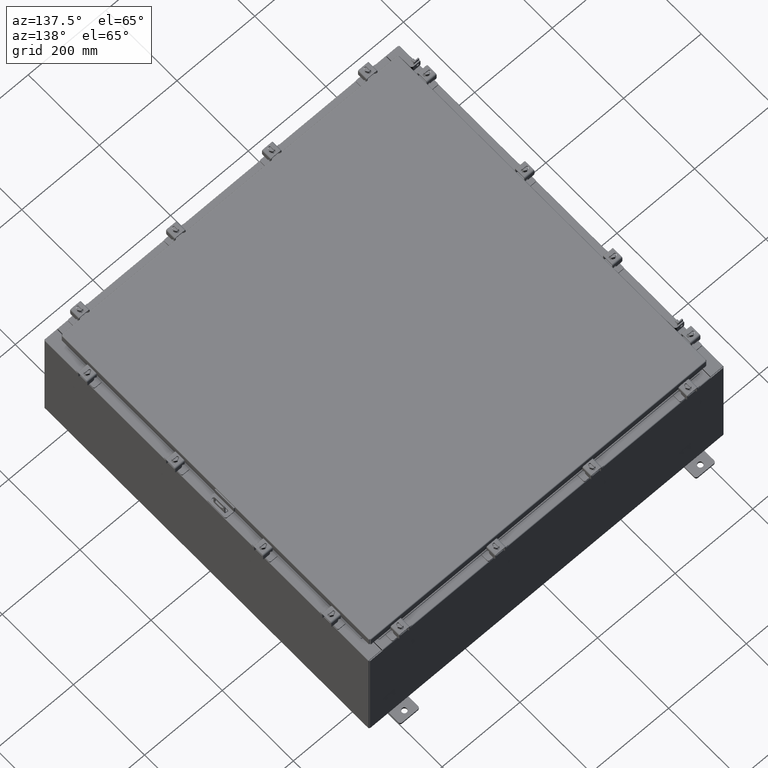
[diagram: clean part render]
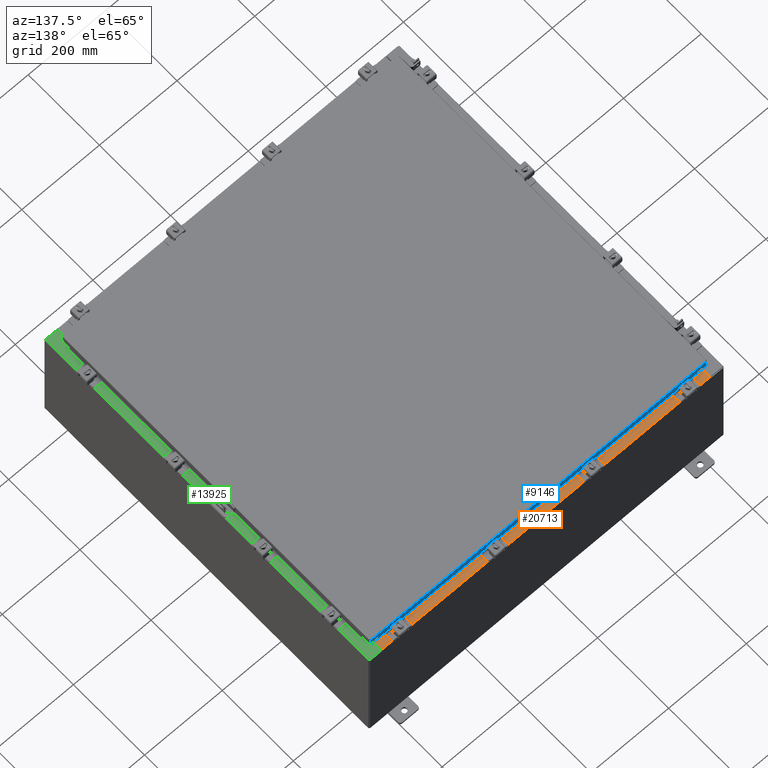
[diagram: same view with three faces highlighted in distinct colors, each labeled with its STEP entity id]
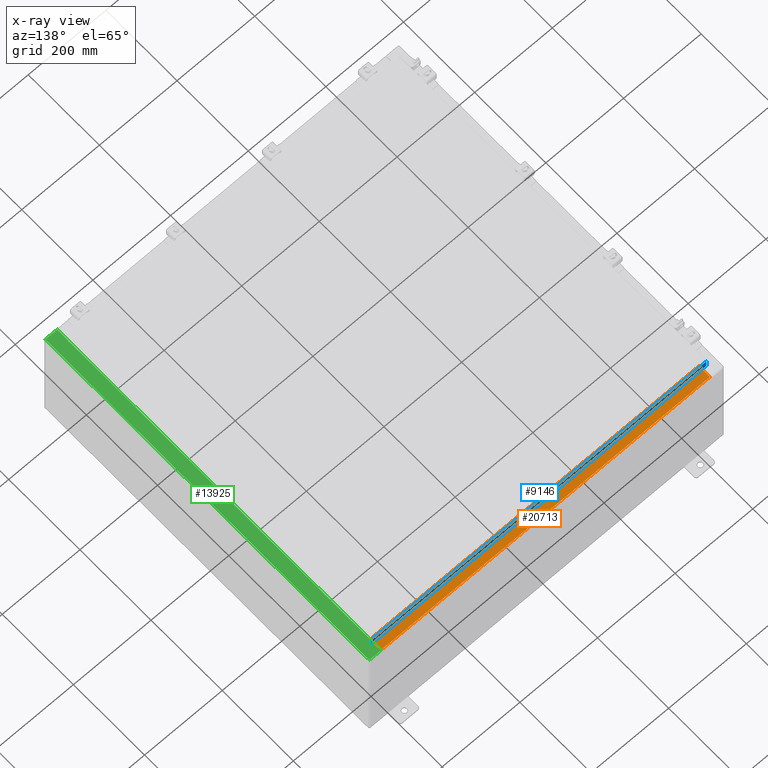
[diagram: x-ray of the same camera — body ghosted, the three highlighted faces saturated]
A machine part, auxiliary view with three faces highlighted in distinct colors.
The next image is the same camera in x-ray (body ghosted, the three faces saturated) — at least one of them is partly hidden behind the body in this view.
Their STEP definitions:

[orange] entity #20713 — the highlighted planar face has unit normal (0, 0, 1).
#75 = EDGE_CURVE ( 'NONE', #6809, #26015, #13913, .T. ) ;
#3413 = CARTESIAN_POINT ( 'NONE',  ( 16.63720000000000400, -1.300299999999999800, 6.000000000000003600 ) ) ;
#3482 = VERTEX_POINT ( 'NONE', #27142 ) ;
#3706 = CARTESIAN_POINT ( 'NONE',  ( -5.156971724347648400E-018, -0.08769999999999972300, 5.999999999999999100 ) ) ;
#4529 = FACE_OUTER_BOUND ( 'NONE', #23442, .T. ) ;
#4786 = DIRECTION ( 'NONE',  ( -1.000000000000000000, 0.0000000000000000000, 0.0000000000000000000 ) ) ;
#4830 = CARTESIAN_POINT ( 'NONE',  ( -16.63719999999999600, -1.287299999999998600, 6.000000000000002700 ) ) ;
#5533 = DIRECTION ( 'NONE',  ( -0.0000000000000000000, -1.000000000000000000, 3.566381192773190000E-015 ) ) ;
#6809 = VERTEX_POINT ( 'NONE', #9914 ) ;
#7906 = EDGE_CURVE ( 'NONE', #21791, #26015, #25674, .T. ) ;
#9425 = EDGE_CURVE ( 'NONE', #6809, #3482, #17048, .T. ) ;
#9727 = CARTESIAN_POINT ( 'NONE',  ( -2.276882898771239300E-018, 1.610972251716581800E-014, 5.999999999999999100 ) ) ;
#9914 = CARTESIAN_POINT ( 'NONE',  ( 16.63720000000000400, -0.08769999999999948700, 5.999999999999999100 ) ) ;
#11105 = CARTESIAN_POINT ( 'NONE',  ( 16.63720000000000400, -1.287299999999999400, 6.000000000000001800 ) ) ;
#11203 = VECTOR ( 'NONE', #4786, 39.37007874015748100 ) ;
#11459 = VECTOR ( 'NONE', #5533, 39.37007874015748100 ) ;
#11566 = PLANE ( 'NONE',  #20893 ) ;
#11837 = DIRECTION ( 'NONE',  ( 0.0000000000000000000, -1.000000000000000000, 2.674785894579892700E-015 ) ) ;
#13133 = ORIENTED_EDGE ( 'NONE', *, *, #7906, .F. ) ;
#13913 = LINE ( 'NONE', #3706, #14572 ) ;
#14572 = VECTOR ( 'NONE', #22319, 39.37007874015748100 ) ;
#15700 = EDGE_CURVE ( 'NONE', #3482, #21791, #17455, .T. ) ;
#17048 = LINE ( 'NONE', #3413, #11459 ) ;
#17455 = LINE ( 'NONE', #11105, #11203 ) ;
#17791 = CARTESIAN_POINT ( 'NONE',  ( -16.63719999999999600, -0.08769999999999972300, 5.999999999999999100 ) ) ;
#19155 = ORIENTED_EDGE ( 'NONE', *, *, #75, .T. ) ;
#19432 = VECTOR ( 'NONE', #24008, 39.37007874015748100 ) ;
#20713 = ADVANCED_FACE ( 'NONE', ( #4529 ), #11566, .T. ) ;
#20811 = ORIENTED_EDGE ( 'NONE', *, *, #9425, .F. ) ;
#20893 = AXIS2_PLACEMENT_3D ( 'NONE', #9727, #24405, #11837 ) ;
#21791 = VERTEX_POINT ( 'NONE', #4830 ) ;
#21911 = CARTESIAN_POINT ( 'NONE',  ( -16.63719999999999600, -0.07469999999999973900, 5.999999999999999100 ) ) ;
#22319 = DIRECTION ( 'NONE',  ( -1.000000000000000000, 3.284023746380717400E-017, -8.784060394284559800E-032 ) ) ;
#23442 = EDGE_LOOP ( 'NONE', ( #13133, #24744, #20811, #19155 ) ) ;
#24008 = DIRECTION ( 'NONE',  ( -0.0000000000000000000, 1.000000000000000000, -2.674785894579892700E-015 ) ) ;
#24405 = DIRECTION ( 'NONE',  ( 0.0000000000000000000, 2.674785894579892700E-015, 1.000000000000000000 ) ) ;
#24744 = ORIENTED_EDGE ( 'NONE', *, *, #15700, .F. ) ;
#25674 = LINE ( 'NONE', #21911, #19432 ) ;
#26015 = VERTEX_POINT ( 'NONE', #17791 ) ;
#27142 = CARTESIAN_POINT ( 'NONE',  ( 16.63720000000000400, -1.287299999999999400, 6.000000000000003600 ) ) ;

[blue] entity #9146 — the highlighted planar face has unit normal (0, -1, -0).
#12 = VECTOR ( 'NONE', #6719, 39.37007874015748100 ) ;
#2328 = CARTESIAN_POINT ( 'NONE',  ( 17.00515786437626900, 17.09400000000000100, 4.808052468849102900E-014 ) ) ;
#2944 = VECTOR ( 'NONE', #25895, 39.37007874015748100 ) ;
#3472 = VERTEX_POINT ( 'NONE', #10317 ) ;
#3792 = LINE ( 'NONE', #2328, #24783 ) ;
#3846 = ORIENTED_EDGE ( 'NONE', *, *, #24729, .F. ) ;
#3991 = LINE ( 'NONE', #16794, #25659 ) ;
#4238 = EDGE_CURVE ( 'NONE', #6373, #17960, #7446, .T. ) ;
#4700 = DIRECTION ( 'NONE',  ( 3.378709304971506500E-031, -1.000000000000000000, -2.818880942772345100E-015 ) ) ;
#5599 = LINE ( 'NONE', #8793, #12 ) ;
#6356 = DIRECTION ( 'NONE',  ( 1.000000000000000000, -0.0000000000000000000, -0.0000000000000000000 ) ) ;
#6373 = VERTEX_POINT ( 'NONE', #8834 ) ;
#6719 = DIRECTION ( 'NONE',  ( 1.000000000000000000, -4.379057701015054300E-047, 1.198599505819701500E-016 ) ) ;
#7203 = EDGE_LOOP ( 'NONE', ( #3846, #10815, #24004, #21363, #20500, #17904 ) ) ;
#7446 = LINE ( 'NONE', #23032, #15951 ) ;
#8416 = VERTEX_POINT ( 'NONE', #10872 ) ;
#8618 = DIRECTION ( 'NONE',  ( 0.0000000000000000000, 2.818880942772345500E-015, -1.000000000000000000 ) ) ;
#8793 = CARTESIAN_POINT ( 'NONE',  ( -17.09400000000000100, 17.09400000000000100, -0.8500000000000043100 ) ) ;
#8834 = CARTESIAN_POINT ( 'NONE',  ( -17.00515786437626900, 17.09400000000000100, -0.08770000000000026400 ) ) ;
#9068 = VECTOR ( 'NONE', #21957, 39.37007874015748100 ) ;
#9146 = ADVANCED_FACE ( 'NONE', ( #25954 ), #13041, .F. ) ;
#9377 = CARTESIAN_POINT ( 'NONE',  ( -17.00515786437626900, 17.09400000000000100, -0.8500000000000043100 ) ) ;
#10250 = CARTESIAN_POINT ( 'NONE',  ( 17.00515786437626900, 17.09400000000000100, -0.08770000000000026400 ) ) ;
#10317 = CARTESIAN_POINT ( 'NONE',  ( -16.25515786437626500, 17.09399999999998700, -0.8500000000000065300 ) ) ;
#10731 = EDGE_CURVE ( 'NONE', #17960, #3472, #24571, .T. ) ;
#10815 = ORIENTED_EDGE ( 'NONE', *, *, #23231, .T. ) ;
#10872 = CARTESIAN_POINT ( 'NONE',  ( 17.00515786437626900, 17.09400000000000100, -0.8499999999999999800 ) ) ;
#10926 = CARTESIAN_POINT ( 'NONE',  ( 0.0000000000000000000, 17.09400000000000100, 4.808052468849102900E-014 ) ) ;
#13041 = PLANE ( 'NONE',  #21300 ) ;
#14636 = LINE ( 'NONE', #17743, #9068 ) ;
#15500 = EDGE_CURVE ( 'NONE', #3472, #23777, #3991, .T. ) ;
#15951 = VECTOR ( 'NONE', #16724, 39.37007874015748100 ) ;
#16724 = DIRECTION ( 'NONE',  ( -0.0000000000000000000, 2.818880942772345500E-015, -1.000000000000000000 ) ) ;
#16794 = CARTESIAN_POINT ( 'NONE',  ( -16.25515786437626900, 17.09399999999998700, -0.8500000000000065300 ) ) ;
#17743 = CARTESIAN_POINT ( 'NONE',  ( -17.09400000000000100, 17.09400000000000100, -0.08770000000000026400 ) ) ;
#17904 = ORIENTED_EDGE ( 'NONE', *, *, #4238, .F. ) ;
#17960 = VERTEX_POINT ( 'NONE', #9377 ) ;
#19062 = CARTESIAN_POINT ( 'NONE',  ( 16.25515786437626900, 17.09399999999998700, -0.8500000000000065300 ) ) ;
#19223 = EDGE_CURVE ( 'NONE', #23777, #8416, #5599, .T. ) ;
#19375 = DIRECTION ( 'NONE',  ( 0.0000000000000000000, 2.818880942772345100E-015, -1.000000000000000000 ) ) ;
#20500 = ORIENTED_EDGE ( 'NONE', *, *, #10731, .F. ) ;
#20860 = VERTEX_POINT ( 'NONE', #10250 ) ;
#21300 = AXIS2_PLACEMENT_3D ( 'NONE', #10926, #4700, #19375 ) ;
#21363 = ORIENTED_EDGE ( 'NONE', *, *, #15500, .F. ) ;
#21671 = CARTESIAN_POINT ( 'NONE',  ( -17.09400000000000100, 17.09400000000000100, -0.8500000000000043100 ) ) ;
#21957 = DIRECTION ( 'NONE',  ( -1.000000000000000000, -3.378709304971507400E-031, -9.209576350126241600E-046 ) ) ;
#23032 = CARTESIAN_POINT ( 'NONE',  ( -17.00515786437626900, 17.09400000000000100, -0.07470000000000015500 ) ) ;
#23231 = EDGE_CURVE ( 'NONE', #20860, #8416, #3792, .T. ) ;
#23777 = VERTEX_POINT ( 'NONE', #19062 ) ;
#24004 = ORIENTED_EDGE ( 'NONE', *, *, #19223, .F. ) ;
#24571 = LINE ( 'NONE', #21671, #2944 ) ;
#24729 = EDGE_CURVE ( 'NONE', #20860, #6373, #14636, .T. ) ;
#24783 = VECTOR ( 'NONE', #8618, 39.37007874015748100 ) ;
#25659 = VECTOR ( 'NONE', #6356, 39.37007874015748100 ) ;
#25895 = DIRECTION ( 'NONE',  ( 1.000000000000000000, -4.379057701015054300E-047, 1.198599505819701500E-016 ) ) ;
#25954 = FACE_OUTER_BOUND ( 'NONE', #7203, .T. ) ;

[green] entity #13925 — the highlighted planar face has unit normal (-0, 0, -1).
#80 = EDGE_CURVE ( 'NONE', #10783, #12892, #8337, .T. ) ;
#270 = VERTEX_POINT ( 'NONE', #22024 ) ;
#494 = VECTOR ( 'NONE', #13100, 39.37007874015748100 ) ;
#583 = CARTESIAN_POINT ( 'NONE',  ( 17.91230000000004100, -17.92530000000000000, 11.92530000000000400 ) ) ;
#611 = CARTESIAN_POINT ( 'NONE',  ( 16.71270000000004400, 16.59375000000000000, 11.92530000000001200 ) ) ;
#624 = CARTESIAN_POINT ( 'NONE',  ( 16.71270000000004400, 16.59375000000000000, 11.92530000000001200 ) ) ;
#668 = LINE ( 'NONE', #611, #16720 ) ;
#1001 = CARTESIAN_POINT ( 'NONE',  ( 8.532114493236880700E-014, -17.92530000000000000, 11.92530000000013000 ) ) ;
#2009 = ORIENTED_EDGE ( 'NONE', *, *, #7515, .F. ) ;
#2014 = EDGE_CURVE ( 'NONE', #12131, #15600, #668, .T. ) ;
#2087 = EDGE_CURVE ( 'NONE', #17069, #12499, #9816, .T. ) ;
#2112 = ORIENTED_EDGE ( 'NONE', *, *, #23798, .F. ) ;
#2410 = CARTESIAN_POINT ( 'NONE',  ( 16.75005000000004100, 16.59375000000000000, 11.92530000000000900 ) ) ;
#2782 = FACE_OUTER_BOUND ( 'NONE', #24796, .T. ) ;
#2832 = CIRCLE ( 'NONE', #24756, 0.01867499999999949400 ) ;
#4077 = EDGE_CURVE ( 'NONE', #10783, #20946, #19248, .T. ) ;
#4107 = VERTEX_POINT ( 'NONE', #8029 ) ;
#4247 = VECTOR ( 'NONE', #17644, 39.37007874015748100 ) ;
#5472 = ORIENTED_EDGE ( 'NONE', *, *, #4077, .F. ) ;
#5657 = DIRECTION ( 'NONE',  ( 0.0000000000000000000, -1.000000000000000000, 0.0000000000000000000 ) ) ;
#5699 = LINE ( 'NONE', #12371, #21753 ) ;
#5732 = EDGE_CURVE ( 'NONE', #20946, #270, #2832, .T. ) ;
#5745 = CARTESIAN_POINT ( 'NONE',  ( 16.71270000000004400, -16.59375000000000000, 11.92530000000001200 ) ) ;
#5920 = EDGE_CURVE ( 'NONE', #12892, #15678, #26772, .T. ) ;
#6879 = CARTESIAN_POINT ( 'NONE',  ( 16.75005000000004100, -16.61242500000000200, 11.92530000000001200 ) ) ;
#6980 = ORIENTED_EDGE ( 'NONE', *, *, #27148, .F. ) ;
#7268 = ORIENTED_EDGE ( 'NONE', *, *, #23887, .T. ) ;
#7515 = EDGE_CURVE ( 'NONE', #17069, #15678, #5699, .T. ) ;
#7627 = DIRECTION ( 'NONE',  ( -7.132762385546384700E-015, 0.0000000000000000000, -1.000000000000000000 ) ) ;
#8029 = CARTESIAN_POINT ( 'NONE',  ( 16.69970000000004300, 16.63110000000000000, 11.92530000000000900 ) ) ;
#8337 = LINE ( 'NONE', #24521, #13273 ) ;
#8815 = EDGE_CURVE ( 'NONE', #15600, #23210, #23327, .T. ) ;
#8953 = DIRECTION ( 'NONE',  ( 1.000000000000000000, 0.0000000000000000000, 0.0000000000000000000 ) ) ;
#9338 = VECTOR ( 'NONE', #13616, 39.37007874015748100 ) ;
#9816 = LINE ( 'NONE', #15510, #4247 ) ;
#9861 = ORIENTED_EDGE ( 'NONE', *, *, #2087, .T. ) ;
#10566 = CARTESIAN_POINT ( 'NONE',  ( 16.69970000000004300, -17.92530000000000000, 11.92530000000000900 ) ) ;
#10764 = CARTESIAN_POINT ( 'NONE',  ( 16.75005000000004100, -16.59375000000000000, 11.92530000000001200 ) ) ;
#10783 = VERTEX_POINT ( 'NONE', #21844 ) ;
#10987 = CARTESIAN_POINT ( 'NONE',  ( 16.69970000000004300, 0.0000000000000000000, 11.92530000000000900 ) ) ;
#11040 = DIRECTION ( 'NONE',  ( 1.000000000000000000, 0.0000000000000000000, 0.0000000000000000000 ) ) ;
#11430 = EDGE_CURVE ( 'NONE', #23210, #4107, #21918, .T. ) ;
#11906 = LINE ( 'NONE', #10764, #17496 ) ;
#12025 = ORIENTED_EDGE ( 'NONE', *, *, #5920, .T. ) ;
#12131 = VERTEX_POINT ( 'NONE', #624 ) ;
#12134 = DIRECTION ( 'NONE',  ( 7.132762385546384700E-015, 0.0000000000000000000, 1.000000000000000000 ) ) ;
#12371 = CARTESIAN_POINT ( 'NONE',  ( 17.91230000000004100, -17.92530000000000000, 11.92530000000000400 ) ) ;
#12499 = VERTEX_POINT ( 'NONE', #26832 ) ;
#12646 = CARTESIAN_POINT ( 'NONE',  ( 16.75005000000004100, -16.63110000000000000, 11.92530000000000900 ) ) ;
#12892 = VERTEX_POINT ( 'NONE', #10566 ) ;
#12941 = VECTOR ( 'NONE', #25387, 39.37007874015748100 ) ;
#13017 = ORIENTED_EDGE ( 'NONE', *, *, #5732, .F. ) ;
#13100 = DIRECTION ( 'NONE',  ( 0.0000000000000000000, -1.000000000000000000, 0.0000000000000000000 ) ) ;
#13273 = VECTOR ( 'NONE', #5657, 39.37007874015748100 ) ;
#13616 = DIRECTION ( 'NONE',  ( 1.000000000000000000, 0.0000000000000000000, -7.132762385546384700E-015 ) ) ;
#13838 = PLANE ( 'NONE',  #17536 ) ;
#13925 = ADVANCED_FACE ( 'NONE', ( #2782 ), #13838, .F. ) ;
#14908 = ORIENTED_EDGE ( 'NONE', *, *, #8815, .F. ) ;
#15510 = CARTESIAN_POINT ( 'NONE',  ( 8.532114493236880700E-014, 17.92530000000000000, 11.92530000000013000 ) ) ;
#15600 = VERTEX_POINT ( 'NONE', #2410 ) ;
#15664 = VECTOR ( 'NONE', #21642, 39.37007874015748100 ) ;
#15678 = VERTEX_POINT ( 'NONE', #583 ) ;
#16720 = VECTOR ( 'NONE', #11040, 39.37007874015748100 ) ;
#17069 = VERTEX_POINT ( 'NONE', #21067 ) ;
#17220 = LINE ( 'NONE', #10987, #494 ) ;
#17496 = VECTOR ( 'NONE', #25441, 39.37007874015748100 ) ;
#17536 = AXIS2_PLACEMENT_3D ( 'NONE', #18079, #7627, #22279 ) ;
#17644 = DIRECTION ( 'NONE',  ( -1.000000000000000000, 0.0000000000000000000, 7.132762385546384700E-015 ) ) ;
#18079 = CARTESIAN_POINT ( 'NONE',  ( 8.532114493236880700E-014, 0.0000000000000000000, 11.92530000000013000 ) ) ;
#18392 = DIRECTION ( 'NONE',  ( 1.000000000000000000, 4.340572780400098900E-014, 4.340572780400098900E-014 ) ) ;
#18828 = ORIENTED_EDGE ( 'NONE', *, *, #2014, .F. ) ;
#19003 = AXIS2_PLACEMENT_3D ( 'NONE', #24706, #12134, #26841 ) ;
#19082 = CARTESIAN_POINT ( 'NONE',  ( 16.75005000000004100, 16.63110000000000000, 11.92530000000000900 ) ) ;
#19152 = CARTESIAN_POINT ( 'NONE',  ( 16.71270000000004400, -16.59375000000000000, 11.92530000000001200 ) ) ;
#19248 = LINE ( 'NONE', #22598, #24167 ) ;
#19514 = CARTESIAN_POINT ( 'NONE',  ( 16.75005000000004100, 16.63110000000000000, 11.92530000000001200 ) ) ;
#20260 = VERTEX_POINT ( 'NONE', #5745 ) ;
#20946 = VERTEX_POINT ( 'NONE', #12646 ) ;
#21067 = CARTESIAN_POINT ( 'NONE',  ( 17.91230000000004100, 17.92530000000000000, 11.92530000000000400 ) ) ;
#21526 = DIRECTION ( 'NONE',  ( 7.132762385546384700E-015, 0.0000000000000000000, 1.000000000000000000 ) ) ;
#21642 = DIRECTION ( 'NONE',  ( -1.000000000000000000, 4.340572780400098900E-014, -4.340572780400098900E-014 ) ) ;
#21753 = VECTOR ( 'NONE', #22922, 39.37007874015748100 ) ;
#21844 = CARTESIAN_POINT ( 'NONE',  ( 16.69970000000004300, -16.63110000000000400, 11.92530000000000900 ) ) ;
#21918 = LINE ( 'NONE', #19514, #15664 ) ;
#22024 = CARTESIAN_POINT ( 'NONE',  ( 16.75005000000004100, -16.59375000000000000, 11.92530000000000900 ) ) ;
#22279 = DIRECTION ( 'NONE',  ( -1.000000000000000000, 0.0000000000000000000, 7.132762385546384700E-015 ) ) ;
#22598 = CARTESIAN_POINT ( 'NONE',  ( 16.69970000000004300, -16.63110000000000400, 11.92530000000000900 ) ) ;
#22922 = DIRECTION ( 'NONE',  ( -0.0000000000000000000, -1.000000000000000000, -0.0000000000000000000 ) ) ;
#23210 = VERTEX_POINT ( 'NONE', #19082 ) ;
#23327 = CIRCLE ( 'NONE', #19003, 0.01867499999999949400 ) ;
#23759 = ORIENTED_EDGE ( 'NONE', *, *, #11430, .F. ) ;
#23798 = EDGE_CURVE ( 'NONE', #20260, #12131, #24759, .T. ) ;
#23887 = EDGE_CURVE ( 'NONE', #12499, #4107, #17220, .T. ) ;
#24167 = VECTOR ( 'NONE', #18392, 39.37007874015748100 ) ;
#24521 = CARTESIAN_POINT ( 'NONE',  ( 16.69970000000004300, 0.0000000000000000000, 11.92530000000000900 ) ) ;
#24706 = CARTESIAN_POINT ( 'NONE',  ( 16.75005000000004100, 16.61242500000000200, 11.92530000000001200 ) ) ;
#24756 = AXIS2_PLACEMENT_3D ( 'NONE', #6879, #21526, #8953 ) ;
#24759 = LINE ( 'NONE', #19152, #12941 ) ;
#24796 = EDGE_LOOP ( 'NONE', ( #5472, #25302, #12025, #2009, #9861, #7268, #23759, #14908, #18828, #2112, #6980, #13017 ) ) ;
#25302 = ORIENTED_EDGE ( 'NONE', *, *, #80, .T. ) ;
#25387 = DIRECTION ( 'NONE',  ( -0.0000000000000000000, 1.000000000000000000, -0.0000000000000000000 ) ) ;
#25441 = DIRECTION ( 'NONE',  ( -1.000000000000000000, 0.0000000000000000000, 0.0000000000000000000 ) ) ;
#26772 = LINE ( 'NONE', #1001, #9338 ) ;
#26832 = CARTESIAN_POINT ( 'NONE',  ( 16.69970000000004300, 17.92530000000000000, 11.92530000000000900 ) ) ;
#26841 = DIRECTION ( 'NONE',  ( 1.000000000000000000, 0.0000000000000000000, 0.0000000000000000000 ) ) ;
#27148 = EDGE_CURVE ( 'NONE', #270, #20260, #11906, .T. ) ;